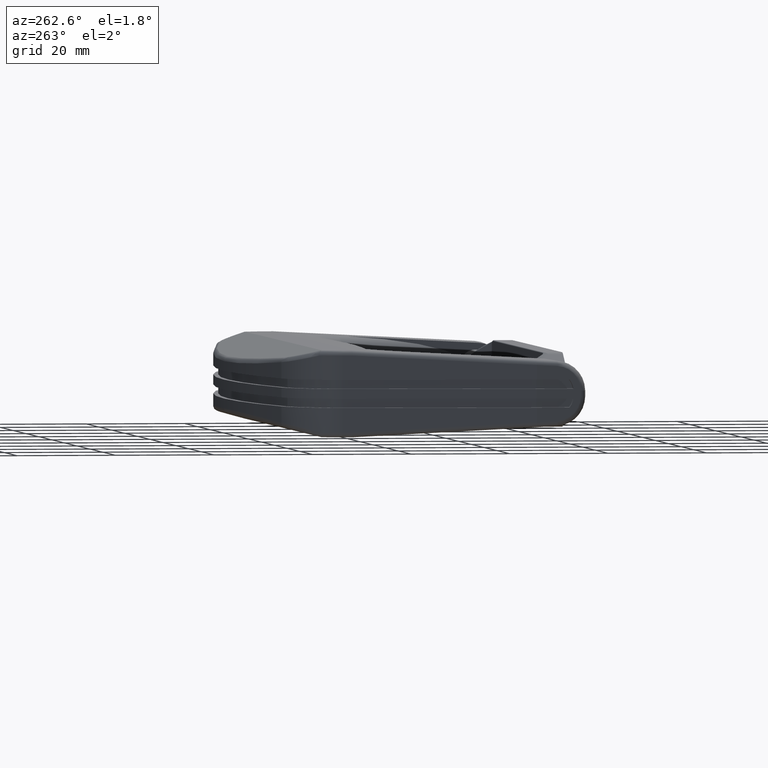
[diagram: clean part render]
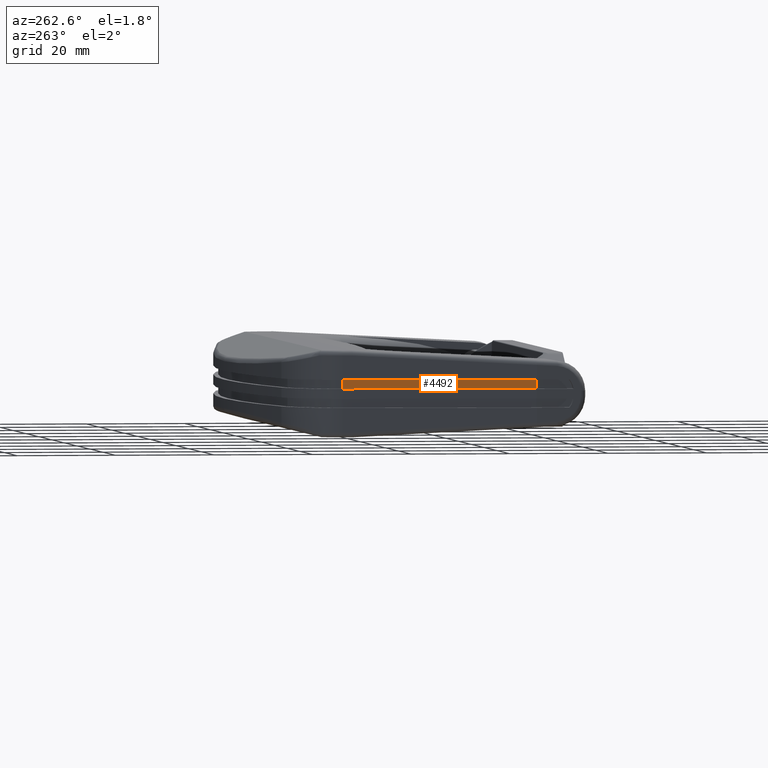
[diagram: same view with one face highlighted and labeled with its STEP entity id]
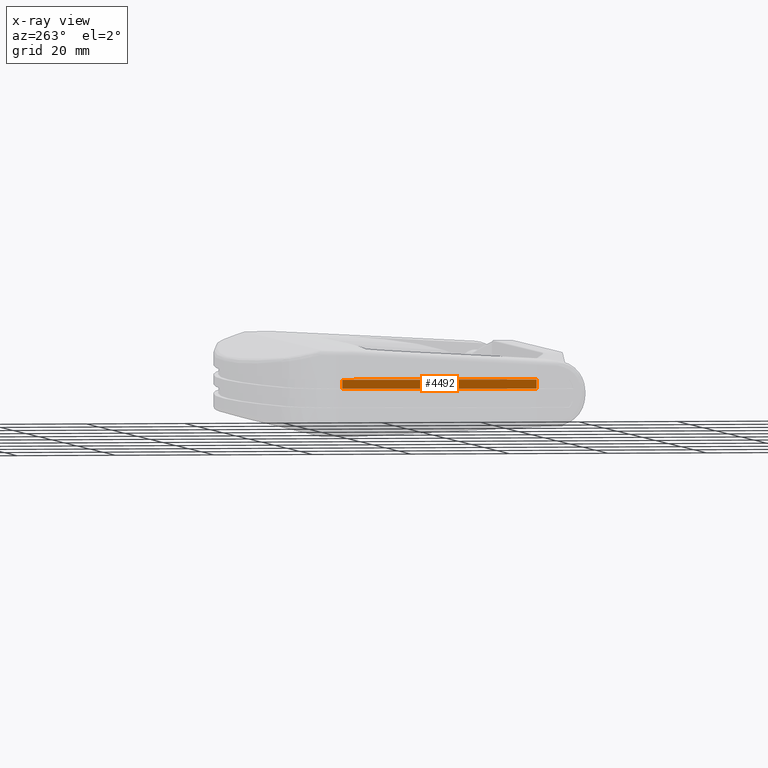
[diagram: x-ray of the same camera — body ghosted, the highlighted face saturated]
A machine part, auxiliary view. The second image highlights one B-rep face of the part: STEP entity #4492.
The next image is the same camera in x-ray: the body ghosted, the highlighted face saturated — about 0% of this face is hidden behind the body in this view.
In plain terms, the highlighted planar face has unit normal (0.9972, -0.0748, 0).
Its self-contained STEP definition (entity closure, byte-faithful):
#83=PLANE('',#4894);
#520=FACE_OUTER_BOUND('',#790,.T.);
#790=EDGE_LOOP('',(#3511,#3512,#3513,#3514));
#1110=LINE('',#7671,#1436);
#1134=LINE('',#7736,#1460);
#1138=LINE('',#7752,#1464);
#1143=LINE('',#7764,#1469);
#1436=VECTOR('',#5701,39.1290903112689);
#1460=VECTOR('',#5767,39.1290903112689);
#1464=VECTOR('',#5791,1.79999999999999);
#1469=VECTOR('',#5806,1.79999999999999);
#1994=VERTEX_POINT('',#7669);
#1995=VERTEX_POINT('',#7670);
#2012=VERTEX_POINT('',#7724);
#2015=VERTEX_POINT('',#7734);
#2520=EDGE_CURVE('',#1994,#1995,#1110,.T.);
#2557=EDGE_CURVE('',#2015,#2012,#1134,.T.);
#2564=EDGE_CURVE('',#1994,#2012,#1138,.T.);
#2570=EDGE_CURVE('',#2015,#1995,#1143,.T.);
#3511=ORIENTED_EDGE('',*,*,#2564,.T.);
#3512=ORIENTED_EDGE('',*,*,#2557,.F.);
#3513=ORIENTED_EDGE('',*,*,#2570,.T.);
#3514=ORIENTED_EDGE('',*,*,#2520,.F.);
#4492=ADVANCED_FACE('',(#520),#83,.F.);
#4894=AXIS2_PLACEMENT_3D('',#7763,#5804,#5805);
#5701=DIRECTION('',(-0.0747899482416342,-0.997199309888456,-5.06109089818734E-16));
#5767=DIRECTION('',(0.0747899482416342,0.997199309888456,5.06109089818734E-16));
#5791=DIRECTION('',(0.,0.,-1.));
#5804=DIRECTION('center_axis',(0.997199309888457,-0.0747899482416338,0.));
#5805=DIRECTION('ref_axis',(0.,0.,-1.));
#5806=DIRECTION('',(-5.39873914343205E-15,-7.19831885790945E-14,1.));
#7669=CARTESIAN_POINT('',(-61.573537360878,48.9820544415391,2.79999999999999));
#7670=CARTESIAN_POINT('',(-64.5,9.9625525865787,2.79999999999997));
#7671=CARTESIAN_POINT('',(-64.5028006901115,9.92521005175838,2.79999999999997));
#7724=CARTESIAN_POINT('',(-61.573537360878,48.9820544415391,1.));
#7734=CARTESIAN_POINT('',(-64.5,9.9625525865787,0.999999999999981));
#7736=CARTESIAN_POINT('',(-61.5688496961746,49.0445566375839,1.));
#7752=CARTESIAN_POINT('',(-61.573537360878,48.9820544415391,1.89999999999999));
#7763=CARTESIAN_POINT('Origin',(-63.0358251931431,29.4848833446712,1.89999999999999));
#7764=CARTESIAN_POINT('',(-64.5,9.96255258657867,1.8812685811819));